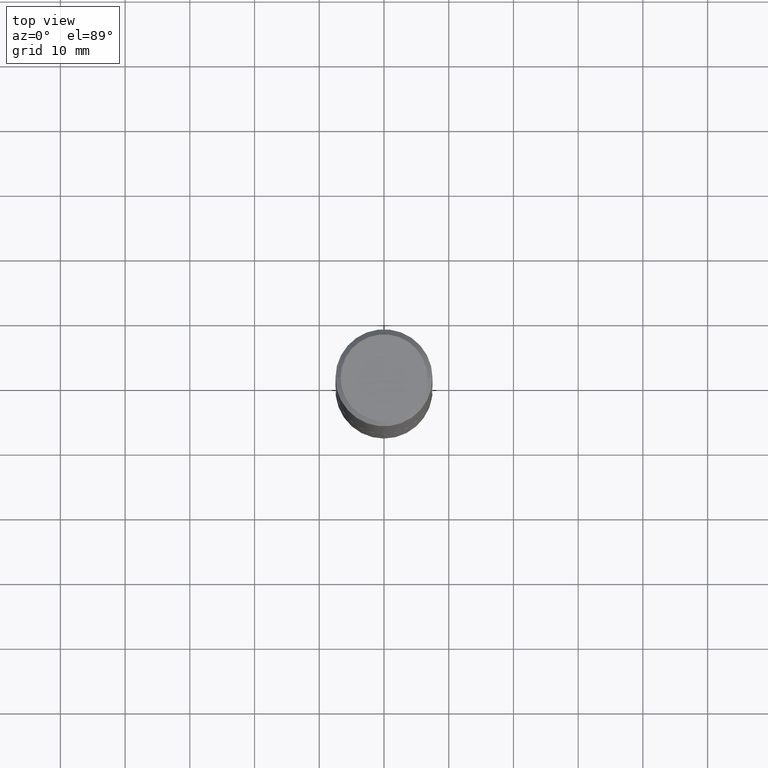
[diagram: clean part render]
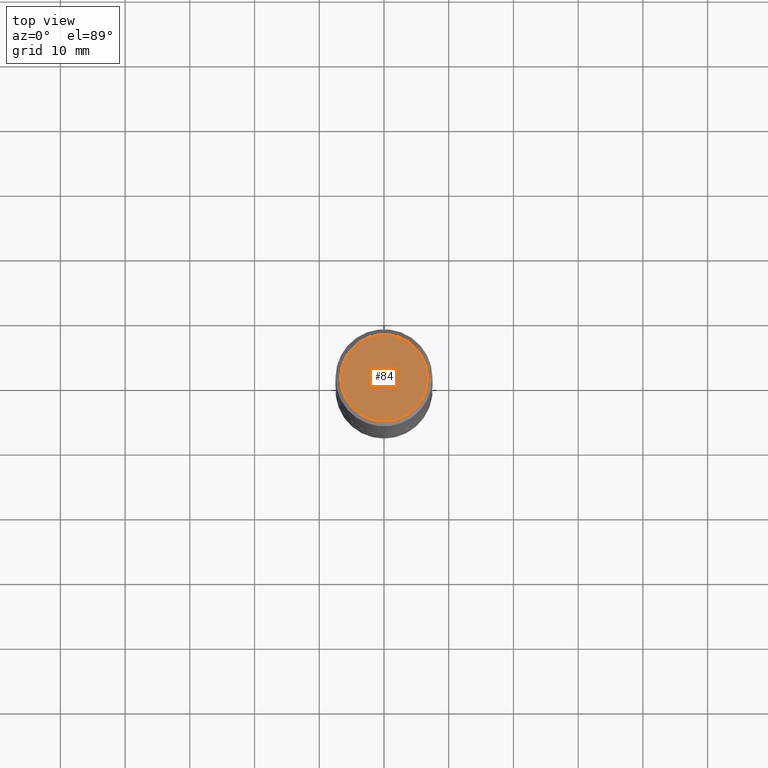
[diagram: same view with one face highlighted and labeled with its STEP entity id]
A machine part, top view. The second image highlights one B-rep face of the part: STEP entity #84.
In plain terms, the highlighted planar face has unit normal (0, -0, -1).
Its self-contained STEP definition (entity closure, byte-faithful):
#20 = CARTESIAN_POINT ( 'NONE',  ( -4.424869519081034775E-47, 6.317540961312786583E-33, 1.809415645740216366E-18 ) ) ;
#23 = FACE_OUTER_BOUND ( 'NONE', #43, .T. ) ;
#43 = EDGE_LOOP ( 'NONE', ( #152, #177 ) ) ;
#50 = DIRECTION ( 'NONE',  ( 2.438088387897960049E-29, -3.491481338843145188E-15, -1.000000000000000000 ) ) ;
#60 = CARTESIAN_POINT ( 'NONE',  ( -8.849739038162069550E-47, 1.263508192262557317E-32, 3.618831291480432732E-18 ) ) ;
#64 = AXIS2_PLACEMENT_3D ( 'NONE', #60, #326, #269 ) ;
#81 = AXIS2_PLACEMENT_3D ( 'NONE', #20, #50, #384 ) ;
#84 = ADVANCED_FACE ( 'NONE', ( #23 ), #348, .F. ) ;
#152 = ORIENTED_EDGE ( 'NONE', *, *, #254, .T. ) ;
#174 = CARTESIAN_POINT ( 'NONE',  ( -0.2640500000000000069, 1.898405690962482095E-15, 3.618831291467347964E-18 ) ) ;
#177 = ORIENTED_EDGE ( 'NONE', *, *, #232, .T. ) ;
#180 = DIRECTION ( 'NONE',  ( -2.445468806185136597E-29, 3.491481338843145583E-15, 1.000000000000000000 ) ) ;
#232 = EDGE_CURVE ( 'NONE', #247, #310, #262, .T. ) ;
#247 = VERTEX_POINT ( 'NONE', #290 ) ;
#254 = EDGE_CURVE ( 'NONE', #310, #247, #329, .T. ) ;
#258 = AXIS2_PLACEMENT_3D ( 'NONE', #323, #180, #328 ) ;
#262 = CIRCLE ( 'NONE', #64, 0.2640500000000000069 ) ;
#269 = DIRECTION ( 'NONE',  ( 1.000000000000000000, -6.982962677686266711E-15, 4.876118690523375132E-29 ) ) ;
#290 = CARTESIAN_POINT ( 'NONE',  ( 0.2640500000000000069, -1.973264173446177597E-15, 3.618831291493780197E-18 ) ) ;
#310 = VERTEX_POINT ( 'NONE', #174 ) ;
#323 = CARTESIAN_POINT ( 'NONE',  ( -8.849739038162069550E-47, 1.263508192262557317E-32, 3.618831291480432732E-18 ) ) ;
#326 = DIRECTION ( 'NONE',  ( -2.445468806185136597E-29, 3.491481338843145583E-15, 1.000000000000000000 ) ) ;
#328 = DIRECTION ( 'NONE',  ( 1.000000000000000000, -6.982962677686266711E-15, 4.876118690523375132E-29 ) ) ;
#329 = CIRCLE ( 'NONE', #258, 0.2640500000000000069 ) ;
#348 = PLANE ( 'NONE',  #81 ) ;
#384 = DIRECTION ( 'NONE',  ( -1.000000000000000000, 6.982962677686265922E-15, -4.876176775795935793E-29 ) ) ;